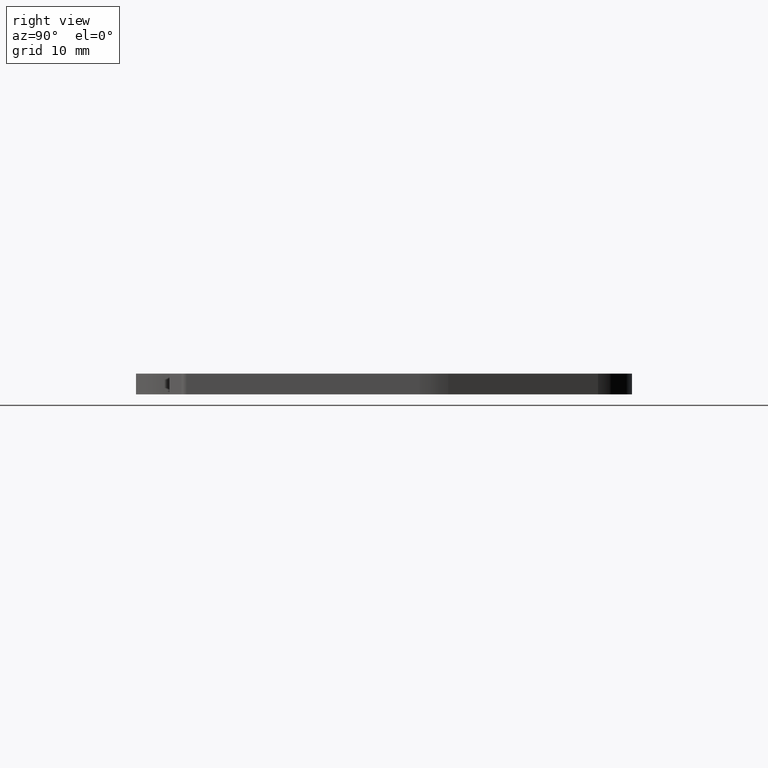
[diagram: clean part render]
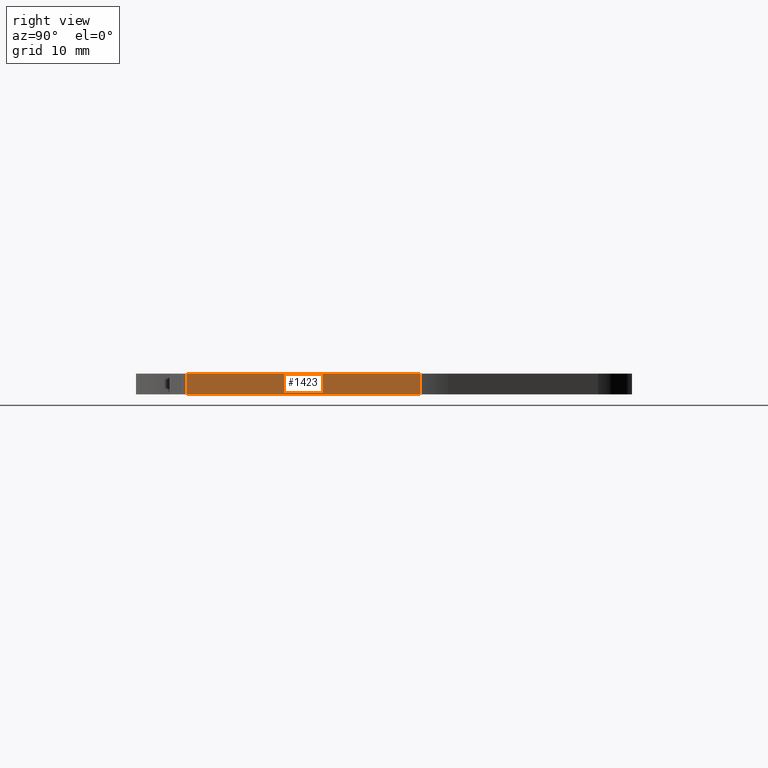
[diagram: same view with one face highlighted and labeled with its STEP entity id]
A machine part, right view. The second image highlights one B-rep face of the part: STEP entity #1423.
In plain terms, the highlighted planar face has unit normal (-1, 0, 0).
Its self-contained STEP definition (entity closure, byte-faithful):
#62 = VECTOR ( 'NONE', #980, 1000.000000000000000 ) ;
#71 = VECTOR ( 'NONE', #1154, 1000.000000000000000 ) ;
#142 = VECTOR ( 'NONE', #1212, 1000.000000000000000 ) ;
#164 = VECTOR ( 'NONE', #1512, 1000.000000000000000 ) ;
#246 = AXIS2_PLACEMENT_3D ( 'NONE', #1677, #1665, #1663 ) ;
#339 = EDGE_LOOP ( 'NONE', ( #678, #658, #663, #637 ) ) ;
#389 = VERTEX_POINT ( 'NONE', #782 ) ;
#390 = VERTEX_POINT ( 'NONE', #805 ) ;
#406 = VERTEX_POINT ( 'NONE', #826 ) ;
#431 = VERTEX_POINT ( 'NONE', #829 ) ;
#637 = ORIENTED_EDGE ( 'NONE', *, *, #1345, .F. ) ;
#658 = ORIENTED_EDGE ( 'NONE', *, *, #1279, .F. ) ;
#663 = ORIENTED_EDGE ( 'NONE', *, *, #1396, .T. ) ;
#678 = ORIENTED_EDGE ( 'NONE', *, *, #1335, .F. ) ;
#782 = CARTESIAN_POINT ( 'NONE',  ( 1799.800570147184800, 718.0379047496785500, 2.000000000000000000 ) ) ;
#805 = CARTESIAN_POINT ( 'NONE',  ( 1799.800570147184800, 718.0379047496785500, 0.0000000000000000000 ) ) ;
#826 = CARTESIAN_POINT ( 'NONE',  ( 1799.800570147184800, 695.4315348762220300, 2.000000000000000000 ) ) ;
#829 = CARTESIAN_POINT ( 'NONE',  ( 1799.800570147184800, 695.4315348762220300, 2.168404344971008900E-016 ) ) ;
#980 = DIRECTION ( 'NONE',  ( 0.0000000000000000000, 0.0000000000000000000, 1.000000000000000000 ) ) ;
#1009 = LINE ( 'NONE', #1010, #62 ) ;
#1010 = CARTESIAN_POINT ( 'NONE',  ( 1799.800570147184800, 695.4315348762220300, 2.000000000000000000 ) ) ;
#1151 = LINE ( 'NONE', #1176, #71 ) ;
#1154 = DIRECTION ( 'NONE',  ( 0.0000000000000000000, 1.000000000000000000, -0.0000000000000000000 ) ) ;
#1176 = CARTESIAN_POINT ( 'NONE',  ( 1799.800570147184800, 695.4315348762220300, 2.000000000000000000 ) ) ;
#1194 = CARTESIAN_POINT ( 'NONE',  ( 1799.800570147184800, 718.0379047496779800, 2.000000000000000000 ) ) ;
#1212 = DIRECTION ( 'NONE',  ( 0.0000000000000000000, 0.0000000000000000000, -1.000000000000000000 ) ) ;
#1222 = LINE ( 'NONE', #1194, #142 ) ;
#1279 = EDGE_CURVE ( 'NONE', #431, #406, #1009, .T. ) ;
#1335 = EDGE_CURVE ( 'NONE', #406, #389, #1151, .T. ) ;
#1345 = EDGE_CURVE ( 'NONE', #389, #390, #1222, .T. ) ;
#1396 = EDGE_CURVE ( 'NONE', #431, #390, #1545, .T. ) ;
#1423 = ADVANCED_FACE ( 'NONE', ( #1698 ), #1640, .F. ) ;
#1512 = DIRECTION ( 'NONE',  ( -0.0000000000000000000, 1.000000000000000000, 0.0000000000000000000 ) ) ;
#1532 = CARTESIAN_POINT ( 'NONE',  ( 1799.800570147184800, 695.4315348762220300, 0.0000000000000000000 ) ) ;
#1545 = LINE ( 'NONE', #1532, #164 ) ;
#1640 = PLANE ( 'NONE',  #246 ) ;
#1663 = DIRECTION ( 'NONE',  ( 0.0000000000000000000, 0.0000000000000000000, 1.000000000000000000 ) ) ;
#1665 = DIRECTION ( 'NONE',  ( -1.000000000000000000, 0.0000000000000000000, 0.0000000000000000000 ) ) ;
#1677 = CARTESIAN_POINT ( 'NONE',  ( 1799.800570147184800, 695.4315348762220300, 2.000000000000000000 ) ) ;
#1698 = FACE_OUTER_BOUND ( 'NONE', #339, .T. ) ;